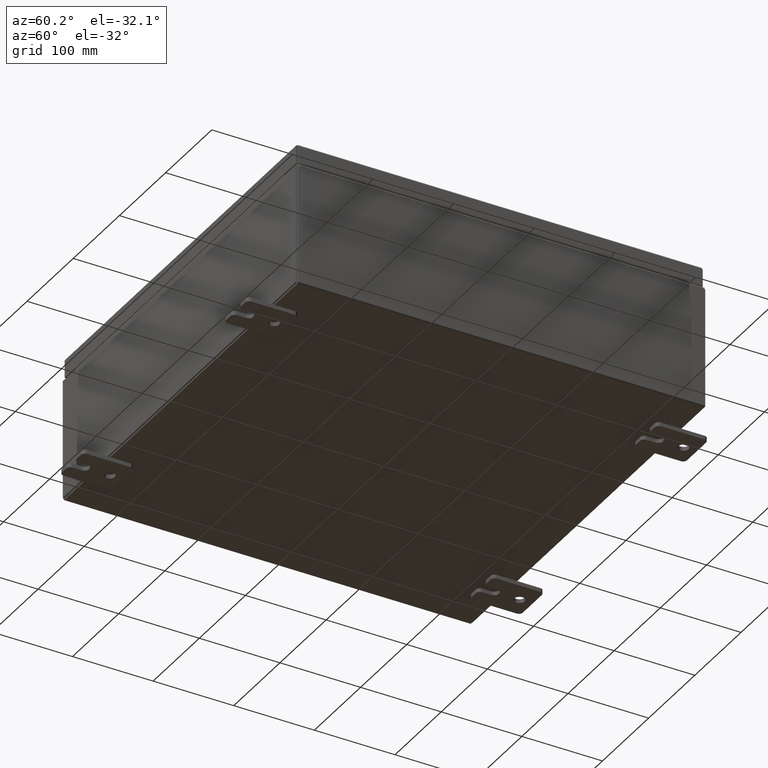
[diagram: clean part render]
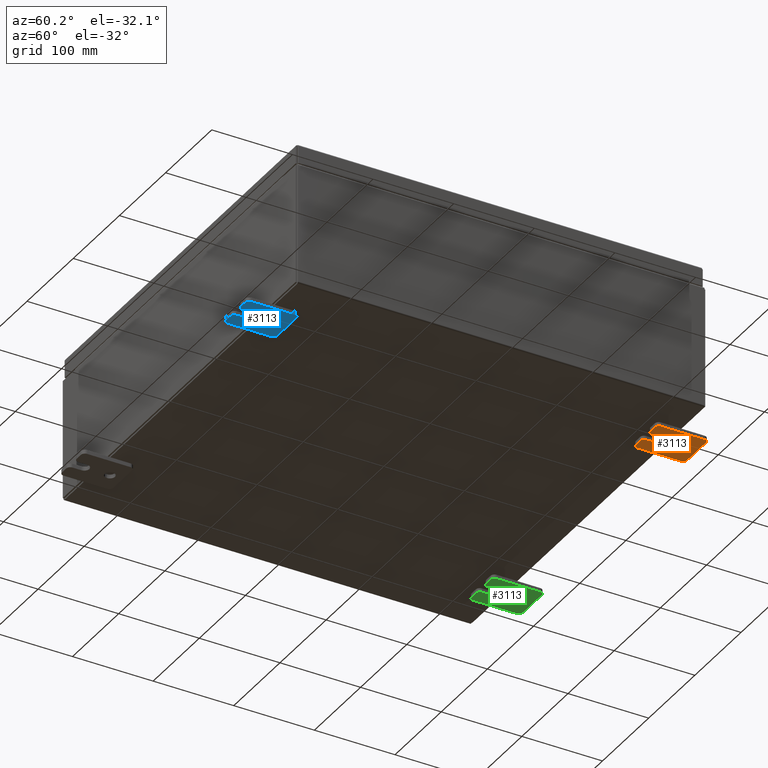
[diagram: same view with three faces highlighted in distinct colors, each labeled with its STEP entity id]
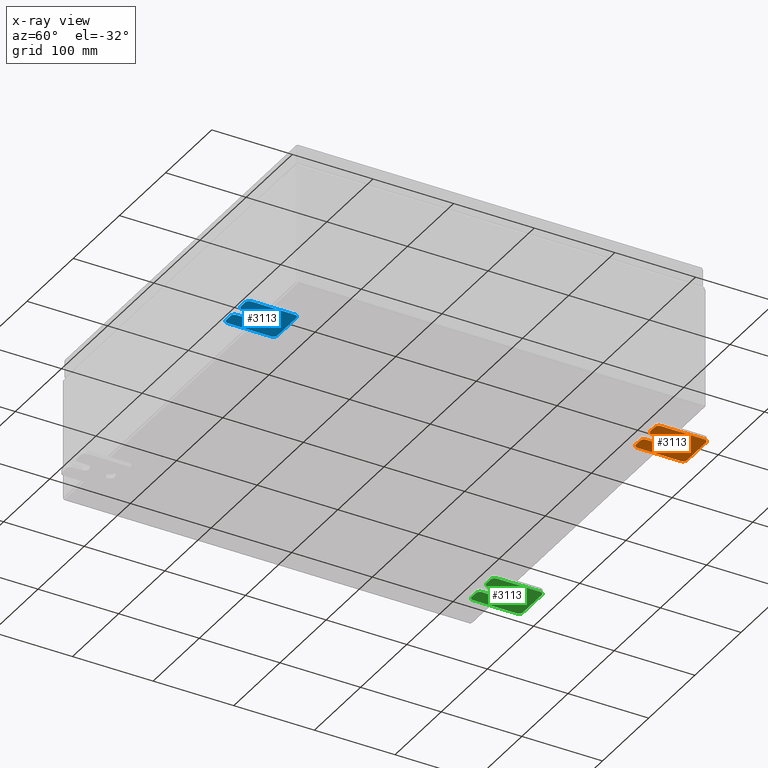
[diagram: x-ray of the same camera — body ghosted, the three highlighted faces saturated]
A machine part, auxiliary view with three faces highlighted in distinct colors.
The next image is the same camera in x-ray (body ghosted, the three faces saturated) — at least one of them is partly hidden behind the body in this view.
Their STEP definitions:

[orange] entity #3113 — the highlighted planar face has unit normal (0, 0, 1).
#2390 = DIRECTION ( 'NONE',  ( 0.0000000000000000000, 0.0000000000000000000, -1.000000000000000000 ) ) ;
#2584 = LINE ( 'NONE', #7833, #40400 ) ;
#3113 = ADVANCED_FACE ( 'NONE', ( #54488, #16872 ), #18984, .F. ) ;
#4136 = DIRECTION ( 'NONE',  ( 0.0000000000000000000, 0.0000000000000000000, -1.000000000000000000 ) ) ;
#5176 = DIRECTION ( 'NONE',  ( 1.000000000000000000, 0.0000000000000000000, -0.0000000000000000000 ) ) ;
#5456 = CARTESIAN_POINT ( 'NONE',  ( -0.1879999999999997800, -1.250000000000003100, 0.4400000000000020000 ) ) ;
#5476 = CIRCLE ( 'NONE', #21311, 0.1900000000000011100 ) ;
#6790 = ORIENTED_EDGE ( 'NONE', *, *, #52083, .T. ) ;
#6950 = ORIENTED_EDGE ( 'NONE', *, *, #34559, .T. ) ;
#7020 = ORIENTED_EDGE ( 'NONE', *, *, #37758, .T. ) ;
#7153 = CARTESIAN_POINT ( 'NONE',  ( -0.1880000000000010000, 0.6249999999999992200, -0.2499999999999999200 ) ) ;
#7833 = CARTESIAN_POINT ( 'NONE',  ( -0.1879999999999997800, 1.249999999999997600, 0.9999999999999951200 ) ) ;
#8108 = EDGE_CURVE ( 'NONE', #56600, #39119, #39269, .T. ) ;
#8219 = DIRECTION ( 'NONE',  ( -0.0000000000000000000, 0.0000000000000000000, -1.000000000000000000 ) ) ;
#9561 = VECTOR ( 'NONE', #55623, 39.37007874015748100 ) ;
#9903 = VERTEX_POINT ( 'NONE', #46787 ) ;
#10348 = CARTESIAN_POINT ( 'NONE',  ( -0.1880000000000004700, -1.060000000000002100, 0.2500000000000005000 ) ) ;
#10440 = CIRCLE ( 'NONE', #35079, 0.2499999999999999200 ) ;
#11210 = VERTEX_POINT ( 'NONE', #56423 ) ;
#11337 = CARTESIAN_POINT ( 'NONE',  ( -0.1880000000000001900, -0.6249999999999992200, -0.2499999999999993900 ) ) ;
#11594 = CARTESIAN_POINT ( 'NONE',  ( -0.1880000000000010000, 0.6249999999999992200, 0.2499999999999999200 ) ) ;
#11737 = CARTESIAN_POINT ( 'NONE',  ( -0.1879999999999997800, -1.060000000000004500, -1.000000000000006400 ) ) ;
#12891 = EDGE_CURVE ( 'NONE', #48755, #31435, #46057, .T. ) ;
#13048 = AXIS2_PLACEMENT_3D ( 'NONE', #14606, #49064, #19542 ) ;
#13339 = CARTESIAN_POINT ( 'NONE',  ( -0.1880000000000001900, -0.6249999999999992200, 6.829619984160658000E-017 ) ) ;
#14258 = CARTESIAN_POINT ( 'NONE',  ( -0.1879999999999997800, 0.0000000000000000000, 0.0000000000000000000 ) ) ;
#14451 = EDGE_CURVE ( 'NONE', #11210, #52012, #45182, .T. ) ;
#14606 = CARTESIAN_POINT ( 'NONE',  ( -0.1879999999999997800, -1.060000000000003400, -0.4400000000000005000 ) ) ;
#14636 = EDGE_CURVE ( 'NONE', #53904, #9903, #43588, .T. ) ;
#15249 = EDGE_CURVE ( 'NONE', #48755, #61530, #39731, .T. ) ;
#15277 = AXIS2_PLACEMENT_3D ( 'NONE', #22215, #56533, #27143 ) ;
#15380 = CARTESIAN_POINT ( 'NONE',  ( -0.1880000000000004700, -1.060000000000003400, -0.2499999999999994400 ) ) ;
#15388 = EDGE_CURVE ( 'NONE', #9903, #53017, #10440, .T. ) ;
#16072 = ORIENTED_EDGE ( 'NONE', *, *, #15249, .T. ) ;
#16275 = DIRECTION ( 'NONE',  ( -6.556435184794182400E-016, -1.000000000000000000, -1.639108796198545600E-016 ) ) ;
#16662 = EDGE_CURVE ( 'NONE', #53017, #23830, #37810, .T. ) ;
#16872 = FACE_OUTER_BOUND ( 'NONE', #17548, .T. ) ;
#17548 = EDGE_LOOP ( 'NONE', ( #62112, #16072, #34770, #6790, #32233, #26078, #52236, #21579, #21638, #7020, #28343, #59766, #61871, #6950 ) ) ;
#17883 = CARTESIAN_POINT ( 'NONE',  ( -0.1879999999999997800, -1.250000000000005600, -1.000000000000006200 ) ) ;
#18285 = DIRECTION ( 'NONE',  ( -6.829619984160660000E-016, -1.000000000000000000, 0.0000000000000000000 ) ) ;
#18940 = VECTOR ( 'NONE', #22091, 39.37007874015748100 ) ;
#18984 = PLANE ( 'NONE',  #62283 ) ;
#19143 = DIRECTION ( 'NONE',  ( 0.0000000000000000000, -1.639108796198553600E-015, -1.000000000000000000 ) ) ;
#19236 = CARTESIAN_POINT ( 'NONE',  ( -0.1880000000000010000, 0.6249999999999992200, -7.703811342100550500E-020 ) ) ;
#19542 = DIRECTION ( 'NONE',  ( 0.0000000000000000000, 0.0000000000000000000, -1.000000000000000000 ) ) ;
#20315 = CARTESIAN_POINT ( 'NONE',  ( -0.1879999999999997800, 1.059999999999996500, 0.9999999999999953400 ) ) ;
#21311 = AXIS2_PLACEMENT_3D ( 'NONE', #61109, #31906, #2390 ) ;
#21353 = VECTOR ( 'NONE', #19143, 39.37007874015748100 ) ;
#21579 = ORIENTED_EDGE ( 'NONE', *, *, #8108, .T. ) ;
#21638 = ORIENTED_EDGE ( 'NONE', *, *, #54106, .F. ) ;
#21676 = AXIS2_PLACEMENT_3D ( 'NONE', #62796, #33634, #4136 ) ;
#21774 = VERTEX_POINT ( 'NONE', #42603 ) ;
#22091 = DIRECTION ( 'NONE',  ( 0.0000000000000000000, 1.639108796198553600E-015, 1.000000000000000000 ) ) ;
#22215 = CARTESIAN_POINT ( 'NONE',  ( -0.1879999999999997800, -1.060000000000001600, 0.8099999999999978300 ) ) ;
#22800 = CARTESIAN_POINT ( 'NONE',  ( -0.1879999999999997800, 1.059999999999993400, -1.000000000000010000 ) ) ;
#23210 = DIRECTION ( 'NONE',  ( 0.0000000000000000000, 0.0000000000000000000, -1.000000000000000000 ) ) ;
#23428 = VECTOR ( 'NONE', #27733, 39.37007874015748100 ) ;
#23830 = VERTEX_POINT ( 'NONE', #15380 ) ;
#23892 = DIRECTION ( 'NONE',  ( -1.000000000000000000, -0.0000000000000000000, 0.0000000000000000000 ) ) ;
#24098 = CARTESIAN_POINT ( 'NONE',  ( -0.1879999999999997800, -1.060000000000004100, -0.8100000000000050500 ) ) ;
#24100 = DIRECTION ( 'NONE',  ( 0.0000000000000000000, 0.0000000000000000000, -1.000000000000000000 ) ) ;
#24294 = EDGE_CURVE ( 'NONE', #56600, #26700, #62458, .T. ) ;
#24585 = VECTOR ( 'NONE', #16275, 39.37007874015748100 ) ;
#24623 = CARTESIAN_POINT ( 'NONE',  ( -0.1880000000000010000, 0.6249999999999992200, -7.703811342100550500E-020 ) ) ;
#24915 = CIRCLE ( 'NONE', #21676, 0.1900000000000011100 ) ;
#25696 = EDGE_CURVE ( 'NONE', #57980, #61530, #2584, .T. ) ;
#25808 = VECTOR ( 'NONE', #62233, 39.37007874015748100 ) ;
#26078 = ORIENTED_EDGE ( 'NONE', *, *, #58297, .T. ) ;
#26087 = EDGE_CURVE ( 'NONE', #38117, #31732, #32649, .T. ) ;
#26090 = CARTESIAN_POINT ( 'NONE',  ( -0.1879999999999997800, -1.060000000000001200, 0.9999999999999988900 ) ) ;
#26221 = CARTESIAN_POINT ( 'NONE',  ( -0.1879999999999997800, -1.250000000000002200, 0.9999999999999992200 ) ) ;
#26700 = VERTEX_POINT ( 'NONE', #22800 ) ;
#27143 = DIRECTION ( 'NONE',  ( 0.0000000000000000000, 7.189073667537492800E-016, -1.000000000000000000 ) ) ;
#27154 = CARTESIAN_POINT ( 'NONE',  ( -0.1879999999999997800, -1.060000000000002100, 0.4400000000000016700 ) ) ;
#27733 = DIRECTION ( 'NONE',  ( 0.0000000000000000000, 1.000000000000000000, -1.639108796198558100E-015 ) ) ;
#28343 = ORIENTED_EDGE ( 'NONE', *, *, #16662, .F. ) ;
#29621 = DIRECTION ( 'NONE',  ( 0.0000000000000000000, 0.0000000000000000000, -1.000000000000000000 ) ) ;
#31435 = VERTEX_POINT ( 'NONE', #5456 ) ;
#31732 = VERTEX_POINT ( 'NONE', #7153 ) ;
#31906 = DIRECTION ( 'NONE',  ( -1.000000000000000000, -0.0000000000000000000, 0.0000000000000000000 ) ) ;
#32157 = DIRECTION ( 'NONE',  ( 0.0000000000000000000, 0.0000000000000000000, -1.000000000000000000 ) ) ;
#32233 = ORIENTED_EDGE ( 'NONE', *, *, #14451, .F. ) ;
#32649 = CIRCLE ( 'NONE', #44528, 0.2499999999999999200 ) ;
#33634 = DIRECTION ( 'NONE',  ( -1.000000000000000000, -0.0000000000000000000, 0.0000000000000000000 ) ) ;
#34559 = EDGE_CURVE ( 'NONE', #53904, #31435, #58160, .T. ) ;
#34770 = ORIENTED_EDGE ( 'NONE', *, *, #25696, .F. ) ;
#35079 = AXIS2_PLACEMENT_3D ( 'NONE', #13339, #47804, #18285 ) ;
#37758 = EDGE_CURVE ( 'NONE', #21774, #23830, #63376, .T. ) ;
#37794 = CARTESIAN_POINT ( 'NONE',  ( -0.1879999999999997800, -1.250000000000002400, 0.8099999999999980500 ) ) ;
#37810 = LINE ( 'NONE', #11337, #24585 ) ;
#37863 = CARTESIAN_POINT ( 'NONE',  ( -0.1880000000000005800, -1.250000000000003800, 0.2500000000000005000 ) ) ;
#38117 = VERTEX_POINT ( 'NONE', #11594 ) ;
#39119 = VERTEX_POINT ( 'NONE', #48604 ) ;
#39200 = EDGE_LOOP ( 'NONE', ( #50901, #56896 ) ) ;
#39269 = CIRCLE ( 'NONE', #61274, 0.1900000000000011100 ) ;
#39731 = CIRCLE ( 'NONE', #15277, 0.1900000000000011100 ) ;
#40400 = VECTOR ( 'NONE', #42086, 39.37007874015748100 ) ;
#41082 = AXIS2_PLACEMENT_3D ( 'NONE', #24623, #58886, #29621 ) ;
#42086 = DIRECTION ( 'NONE',  ( 0.0000000000000000000, -1.000000000000000000, 1.639108796198558100E-015 ) ) ;
#42603 = CARTESIAN_POINT ( 'NONE',  ( -0.1879999999999997800, -1.250000000000004700, -0.4400000000000002200 ) ) ;
#42725 = CARTESIAN_POINT ( 'NONE',  ( -0.1879999999999997800, 1.249999999999997300, 0.8099999999999935000 ) ) ;
#43588 = LINE ( 'NONE', #37863, #25808 ) ;
#44528 = AXIS2_PLACEMENT_3D ( 'NONE', #19236, #53600, #24100 ) ;
#45182 = LINE ( 'NONE', #56404, #18940 ) ;
#46057 = LINE ( 'NONE', #53505, #21353 ) ;
#46542 = CIRCLE ( 'NONE', #41082, 0.2499999999999999200 ) ;
#46787 = CARTESIAN_POINT ( 'NONE',  ( -0.1880000000000001900, -0.6249999999999992200, 0.2500000000000005000 ) ) ;
#47349 = LINE ( 'NONE', #26221, #9561 ) ;
#47367 = CARTESIAN_POINT ( 'NONE',  ( -0.1880000000000001900, -0.6249999999999992200, -0.2499999999999998600 ) ) ;
#47804 = DIRECTION ( 'NONE',  ( -1.000000000000000000, 6.523827964459549700E-016, 5.163192708025532000E-017 ) ) ;
#48604 = CARTESIAN_POINT ( 'NONE',  ( -0.1879999999999997800, -1.250000000000005300, -0.8100000000000047200 ) ) ;
#48755 = VERTEX_POINT ( 'NONE', #37794 ) ;
#49064 = DIRECTION ( 'NONE',  ( -1.000000000000000000, -0.0000000000000000000, 0.0000000000000000000 ) ) ;
#50901 = ORIENTED_EDGE ( 'NONE', *, *, #54686, .T. ) ;
#52012 = VERTEX_POINT ( 'NONE', #42725 ) ;
#52083 = EDGE_CURVE ( 'NONE', #57980, #52012, #24915, .T. ) ;
#52236 = ORIENTED_EDGE ( 'NONE', *, *, #24294, .F. ) ;
#52512 = AXIS2_PLACEMENT_3D ( 'NONE', #27154, #61351, #32157 ) ;
#53017 = VERTEX_POINT ( 'NONE', #47367 ) ;
#53505 = CARTESIAN_POINT ( 'NONE',  ( -0.1879999999999997800, -1.250000000000002200, 0.9999999999999992200 ) ) ;
#53600 = DIRECTION ( 'NONE',  ( 1.000000000000000000, -0.0000000000000000000, -5.163192708025532000E-017 ) ) ;
#53904 = VERTEX_POINT ( 'NONE', #10348 ) ;
#54106 = EDGE_CURVE ( 'NONE', #21774, #39119, #47349, .T. ) ;
#54488 = FACE_BOUND ( 'NONE', #39200, .T. ) ;
#54686 = EDGE_CURVE ( 'NONE', #31732, #38117, #46542, .T. ) ;
#55623 = DIRECTION ( 'NONE',  ( 0.0000000000000000000, -1.639108796198553600E-015, -1.000000000000000000 ) ) ;
#56404 = CARTESIAN_POINT ( 'NONE',  ( -0.1879999999999997800, 1.249999999999994200, -1.000000000000010400 ) ) ;
#56423 = CARTESIAN_POINT ( 'NONE',  ( -0.1879999999999997800, 1.249999999999994700, -0.8100000000000092700 ) ) ;
#56533 = DIRECTION ( 'NONE',  ( -1.000000000000000000, -0.0000000000000000000, 0.0000000000000000000 ) ) ;
#56600 = VERTEX_POINT ( 'NONE', #11737 ) ;
#56896 = ORIENTED_EDGE ( 'NONE', *, *, #26087, .T. ) ;
#57980 = VERTEX_POINT ( 'NONE', #20315 ) ;
#58160 = CIRCLE ( 'NONE', #52512, 0.1900000000000011400 ) ;
#58297 = EDGE_CURVE ( 'NONE', #11210, #26700, #5476, .T. ) ;
#58886 = DIRECTION ( 'NONE',  ( 1.000000000000000000, -0.0000000000000000000, -5.163192708025532000E-017 ) ) ;
#59766 = ORIENTED_EDGE ( 'NONE', *, *, #15388, .F. ) ;
#61109 = CARTESIAN_POINT ( 'NONE',  ( -0.1879999999999997800, 1.059999999999993600, -0.8100000000000089400 ) ) ;
#61274 = AXIS2_PLACEMENT_3D ( 'NONE', #24098, #23892, #23210 ) ;
#61351 = DIRECTION ( 'NONE',  ( -1.000000000000000000, -0.0000000000000000000, 0.0000000000000000000 ) ) ;
#61530 = VERTEX_POINT ( 'NONE', #26090 ) ;
#61871 = ORIENTED_EDGE ( 'NONE', *, *, #14636, .F. ) ;
#62112 = ORIENTED_EDGE ( 'NONE', *, *, #12891, .F. ) ;
#62233 = DIRECTION ( 'NONE',  ( 6.556435184794182400E-016, 1.000000000000000000, 0.0000000000000000000 ) ) ;
#62283 = AXIS2_PLACEMENT_3D ( 'NONE', #14258, #5176, #8219 ) ;
#62458 = LINE ( 'NONE', #17883, #23428 ) ;
#62796 = CARTESIAN_POINT ( 'NONE',  ( -0.1879999999999997800, 1.059999999999996300, 0.8099999999999938400 ) ) ;
#63376 = CIRCLE ( 'NONE', #13048, 0.1900000000000011100 ) ;

[blue] entity #3113 — the highlighted planar face has unit normal (0, 0, 1).
#2390 = DIRECTION ( 'NONE',  ( 0.0000000000000000000, 0.0000000000000000000, -1.000000000000000000 ) ) ;
#2584 = LINE ( 'NONE', #7833, #40400 ) ;
#3113 = ADVANCED_FACE ( 'NONE', ( #54488, #16872 ), #18984, .F. ) ;
#4136 = DIRECTION ( 'NONE',  ( 0.0000000000000000000, 0.0000000000000000000, -1.000000000000000000 ) ) ;
#5176 = DIRECTION ( 'NONE',  ( 1.000000000000000000, 0.0000000000000000000, -0.0000000000000000000 ) ) ;
#5456 = CARTESIAN_POINT ( 'NONE',  ( -0.1879999999999997800, -1.250000000000003100, 0.4400000000000020000 ) ) ;
#5476 = CIRCLE ( 'NONE', #21311, 0.1900000000000011100 ) ;
#6790 = ORIENTED_EDGE ( 'NONE', *, *, #52083, .T. ) ;
#6950 = ORIENTED_EDGE ( 'NONE', *, *, #34559, .T. ) ;
#7020 = ORIENTED_EDGE ( 'NONE', *, *, #37758, .T. ) ;
#7153 = CARTESIAN_POINT ( 'NONE',  ( -0.1880000000000010000, 0.6249999999999992200, -0.2499999999999999200 ) ) ;
#7833 = CARTESIAN_POINT ( 'NONE',  ( -0.1879999999999997800, 1.249999999999997600, 0.9999999999999951200 ) ) ;
#8108 = EDGE_CURVE ( 'NONE', #56600, #39119, #39269, .T. ) ;
#8219 = DIRECTION ( 'NONE',  ( -0.0000000000000000000, 0.0000000000000000000, -1.000000000000000000 ) ) ;
#9561 = VECTOR ( 'NONE', #55623, 39.37007874015748100 ) ;
#9903 = VERTEX_POINT ( 'NONE', #46787 ) ;
#10348 = CARTESIAN_POINT ( 'NONE',  ( -0.1880000000000004700, -1.060000000000002100, 0.2500000000000005000 ) ) ;
#10440 = CIRCLE ( 'NONE', #35079, 0.2499999999999999200 ) ;
#11210 = VERTEX_POINT ( 'NONE', #56423 ) ;
#11337 = CARTESIAN_POINT ( 'NONE',  ( -0.1880000000000001900, -0.6249999999999992200, -0.2499999999999993900 ) ) ;
#11594 = CARTESIAN_POINT ( 'NONE',  ( -0.1880000000000010000, 0.6249999999999992200, 0.2499999999999999200 ) ) ;
#11737 = CARTESIAN_POINT ( 'NONE',  ( -0.1879999999999997800, -1.060000000000004500, -1.000000000000006400 ) ) ;
#12891 = EDGE_CURVE ( 'NONE', #48755, #31435, #46057, .T. ) ;
#13048 = AXIS2_PLACEMENT_3D ( 'NONE', #14606, #49064, #19542 ) ;
#13339 = CARTESIAN_POINT ( 'NONE',  ( -0.1880000000000001900, -0.6249999999999992200, 6.829619984160658000E-017 ) ) ;
#14258 = CARTESIAN_POINT ( 'NONE',  ( -0.1879999999999997800, 0.0000000000000000000, 0.0000000000000000000 ) ) ;
#14451 = EDGE_CURVE ( 'NONE', #11210, #52012, #45182, .T. ) ;
#14606 = CARTESIAN_POINT ( 'NONE',  ( -0.1879999999999997800, -1.060000000000003400, -0.4400000000000005000 ) ) ;
#14636 = EDGE_CURVE ( 'NONE', #53904, #9903, #43588, .T. ) ;
#15249 = EDGE_CURVE ( 'NONE', #48755, #61530, #39731, .T. ) ;
#15277 = AXIS2_PLACEMENT_3D ( 'NONE', #22215, #56533, #27143 ) ;
#15380 = CARTESIAN_POINT ( 'NONE',  ( -0.1880000000000004700, -1.060000000000003400, -0.2499999999999994400 ) ) ;
#15388 = EDGE_CURVE ( 'NONE', #9903, #53017, #10440, .T. ) ;
#16072 = ORIENTED_EDGE ( 'NONE', *, *, #15249, .T. ) ;
#16275 = DIRECTION ( 'NONE',  ( -6.556435184794182400E-016, -1.000000000000000000, -1.639108796198545600E-016 ) ) ;
#16662 = EDGE_CURVE ( 'NONE', #53017, #23830, #37810, .T. ) ;
#16872 = FACE_OUTER_BOUND ( 'NONE', #17548, .T. ) ;
#17548 = EDGE_LOOP ( 'NONE', ( #62112, #16072, #34770, #6790, #32233, #26078, #52236, #21579, #21638, #7020, #28343, #59766, #61871, #6950 ) ) ;
#17883 = CARTESIAN_POINT ( 'NONE',  ( -0.1879999999999997800, -1.250000000000005600, -1.000000000000006200 ) ) ;
#18285 = DIRECTION ( 'NONE',  ( -6.829619984160660000E-016, -1.000000000000000000, 0.0000000000000000000 ) ) ;
#18940 = VECTOR ( 'NONE', #22091, 39.37007874015748100 ) ;
#18984 = PLANE ( 'NONE',  #62283 ) ;
#19143 = DIRECTION ( 'NONE',  ( 0.0000000000000000000, -1.639108796198553600E-015, -1.000000000000000000 ) ) ;
#19236 = CARTESIAN_POINT ( 'NONE',  ( -0.1880000000000010000, 0.6249999999999992200, -7.703811342100550500E-020 ) ) ;
#19542 = DIRECTION ( 'NONE',  ( 0.0000000000000000000, 0.0000000000000000000, -1.000000000000000000 ) ) ;
#20315 = CARTESIAN_POINT ( 'NONE',  ( -0.1879999999999997800, 1.059999999999996500, 0.9999999999999953400 ) ) ;
#21311 = AXIS2_PLACEMENT_3D ( 'NONE', #61109, #31906, #2390 ) ;
#21353 = VECTOR ( 'NONE', #19143, 39.37007874015748100 ) ;
#21579 = ORIENTED_EDGE ( 'NONE', *, *, #8108, .T. ) ;
#21638 = ORIENTED_EDGE ( 'NONE', *, *, #54106, .F. ) ;
#21676 = AXIS2_PLACEMENT_3D ( 'NONE', #62796, #33634, #4136 ) ;
#21774 = VERTEX_POINT ( 'NONE', #42603 ) ;
#22091 = DIRECTION ( 'NONE',  ( 0.0000000000000000000, 1.639108796198553600E-015, 1.000000000000000000 ) ) ;
#22215 = CARTESIAN_POINT ( 'NONE',  ( -0.1879999999999997800, -1.060000000000001600, 0.8099999999999978300 ) ) ;
#22800 = CARTESIAN_POINT ( 'NONE',  ( -0.1879999999999997800, 1.059999999999993400, -1.000000000000010000 ) ) ;
#23210 = DIRECTION ( 'NONE',  ( 0.0000000000000000000, 0.0000000000000000000, -1.000000000000000000 ) ) ;
#23428 = VECTOR ( 'NONE', #27733, 39.37007874015748100 ) ;
#23830 = VERTEX_POINT ( 'NONE', #15380 ) ;
#23892 = DIRECTION ( 'NONE',  ( -1.000000000000000000, -0.0000000000000000000, 0.0000000000000000000 ) ) ;
#24098 = CARTESIAN_POINT ( 'NONE',  ( -0.1879999999999997800, -1.060000000000004100, -0.8100000000000050500 ) ) ;
#24100 = DIRECTION ( 'NONE',  ( 0.0000000000000000000, 0.0000000000000000000, -1.000000000000000000 ) ) ;
#24294 = EDGE_CURVE ( 'NONE', #56600, #26700, #62458, .T. ) ;
#24585 = VECTOR ( 'NONE', #16275, 39.37007874015748100 ) ;
#24623 = CARTESIAN_POINT ( 'NONE',  ( -0.1880000000000010000, 0.6249999999999992200, -7.703811342100550500E-020 ) ) ;
#24915 = CIRCLE ( 'NONE', #21676, 0.1900000000000011100 ) ;
#25696 = EDGE_CURVE ( 'NONE', #57980, #61530, #2584, .T. ) ;
#25808 = VECTOR ( 'NONE', #62233, 39.37007874015748100 ) ;
#26078 = ORIENTED_EDGE ( 'NONE', *, *, #58297, .T. ) ;
#26087 = EDGE_CURVE ( 'NONE', #38117, #31732, #32649, .T. ) ;
#26090 = CARTESIAN_POINT ( 'NONE',  ( -0.1879999999999997800, -1.060000000000001200, 0.9999999999999988900 ) ) ;
#26221 = CARTESIAN_POINT ( 'NONE',  ( -0.1879999999999997800, -1.250000000000002200, 0.9999999999999992200 ) ) ;
#26700 = VERTEX_POINT ( 'NONE', #22800 ) ;
#27143 = DIRECTION ( 'NONE',  ( 0.0000000000000000000, 7.189073667537492800E-016, -1.000000000000000000 ) ) ;
#27154 = CARTESIAN_POINT ( 'NONE',  ( -0.1879999999999997800, -1.060000000000002100, 0.4400000000000016700 ) ) ;
#27733 = DIRECTION ( 'NONE',  ( 0.0000000000000000000, 1.000000000000000000, -1.639108796198558100E-015 ) ) ;
#28343 = ORIENTED_EDGE ( 'NONE', *, *, #16662, .F. ) ;
#29621 = DIRECTION ( 'NONE',  ( 0.0000000000000000000, 0.0000000000000000000, -1.000000000000000000 ) ) ;
#31435 = VERTEX_POINT ( 'NONE', #5456 ) ;
#31732 = VERTEX_POINT ( 'NONE', #7153 ) ;
#31906 = DIRECTION ( 'NONE',  ( -1.000000000000000000, -0.0000000000000000000, 0.0000000000000000000 ) ) ;
#32157 = DIRECTION ( 'NONE',  ( 0.0000000000000000000, 0.0000000000000000000, -1.000000000000000000 ) ) ;
#32233 = ORIENTED_EDGE ( 'NONE', *, *, #14451, .F. ) ;
#32649 = CIRCLE ( 'NONE', #44528, 0.2499999999999999200 ) ;
#33634 = DIRECTION ( 'NONE',  ( -1.000000000000000000, -0.0000000000000000000, 0.0000000000000000000 ) ) ;
#34559 = EDGE_CURVE ( 'NONE', #53904, #31435, #58160, .T. ) ;
#34770 = ORIENTED_EDGE ( 'NONE', *, *, #25696, .F. ) ;
#35079 = AXIS2_PLACEMENT_3D ( 'NONE', #13339, #47804, #18285 ) ;
#37758 = EDGE_CURVE ( 'NONE', #21774, #23830, #63376, .T. ) ;
#37794 = CARTESIAN_POINT ( 'NONE',  ( -0.1879999999999997800, -1.250000000000002400, 0.8099999999999980500 ) ) ;
#37810 = LINE ( 'NONE', #11337, #24585 ) ;
#37863 = CARTESIAN_POINT ( 'NONE',  ( -0.1880000000000005800, -1.250000000000003800, 0.2500000000000005000 ) ) ;
#38117 = VERTEX_POINT ( 'NONE', #11594 ) ;
#39119 = VERTEX_POINT ( 'NONE', #48604 ) ;
#39200 = EDGE_LOOP ( 'NONE', ( #50901, #56896 ) ) ;
#39269 = CIRCLE ( 'NONE', #61274, 0.1900000000000011100 ) ;
#39731 = CIRCLE ( 'NONE', #15277, 0.1900000000000011100 ) ;
#40400 = VECTOR ( 'NONE', #42086, 39.37007874015748100 ) ;
#41082 = AXIS2_PLACEMENT_3D ( 'NONE', #24623, #58886, #29621 ) ;
#42086 = DIRECTION ( 'NONE',  ( 0.0000000000000000000, -1.000000000000000000, 1.639108796198558100E-015 ) ) ;
#42603 = CARTESIAN_POINT ( 'NONE',  ( -0.1879999999999997800, -1.250000000000004700, -0.4400000000000002200 ) ) ;
#42725 = CARTESIAN_POINT ( 'NONE',  ( -0.1879999999999997800, 1.249999999999997300, 0.8099999999999935000 ) ) ;
#43588 = LINE ( 'NONE', #37863, #25808 ) ;
#44528 = AXIS2_PLACEMENT_3D ( 'NONE', #19236, #53600, #24100 ) ;
#45182 = LINE ( 'NONE', #56404, #18940 ) ;
#46057 = LINE ( 'NONE', #53505, #21353 ) ;
#46542 = CIRCLE ( 'NONE', #41082, 0.2499999999999999200 ) ;
#46787 = CARTESIAN_POINT ( 'NONE',  ( -0.1880000000000001900, -0.6249999999999992200, 0.2500000000000005000 ) ) ;
#47349 = LINE ( 'NONE', #26221, #9561 ) ;
#47367 = CARTESIAN_POINT ( 'NONE',  ( -0.1880000000000001900, -0.6249999999999992200, -0.2499999999999998600 ) ) ;
#47804 = DIRECTION ( 'NONE',  ( -1.000000000000000000, 6.523827964459549700E-016, 5.163192708025532000E-017 ) ) ;
#48604 = CARTESIAN_POINT ( 'NONE',  ( -0.1879999999999997800, -1.250000000000005300, -0.8100000000000047200 ) ) ;
#48755 = VERTEX_POINT ( 'NONE', #37794 ) ;
#49064 = DIRECTION ( 'NONE',  ( -1.000000000000000000, -0.0000000000000000000, 0.0000000000000000000 ) ) ;
#50901 = ORIENTED_EDGE ( 'NONE', *, *, #54686, .T. ) ;
#52012 = VERTEX_POINT ( 'NONE', #42725 ) ;
#52083 = EDGE_CURVE ( 'NONE', #57980, #52012, #24915, .T. ) ;
#52236 = ORIENTED_EDGE ( 'NONE', *, *, #24294, .F. ) ;
#52512 = AXIS2_PLACEMENT_3D ( 'NONE', #27154, #61351, #32157 ) ;
#53017 = VERTEX_POINT ( 'NONE', #47367 ) ;
#53505 = CARTESIAN_POINT ( 'NONE',  ( -0.1879999999999997800, -1.250000000000002200, 0.9999999999999992200 ) ) ;
#53600 = DIRECTION ( 'NONE',  ( 1.000000000000000000, -0.0000000000000000000, -5.163192708025532000E-017 ) ) ;
#53904 = VERTEX_POINT ( 'NONE', #10348 ) ;
#54106 = EDGE_CURVE ( 'NONE', #21774, #39119, #47349, .T. ) ;
#54488 = FACE_BOUND ( 'NONE', #39200, .T. ) ;
#54686 = EDGE_CURVE ( 'NONE', #31732, #38117, #46542, .T. ) ;
#55623 = DIRECTION ( 'NONE',  ( 0.0000000000000000000, -1.639108796198553600E-015, -1.000000000000000000 ) ) ;
#56404 = CARTESIAN_POINT ( 'NONE',  ( -0.1879999999999997800, 1.249999999999994200, -1.000000000000010400 ) ) ;
#56423 = CARTESIAN_POINT ( 'NONE',  ( -0.1879999999999997800, 1.249999999999994700, -0.8100000000000092700 ) ) ;
#56533 = DIRECTION ( 'NONE',  ( -1.000000000000000000, -0.0000000000000000000, 0.0000000000000000000 ) ) ;
#56600 = VERTEX_POINT ( 'NONE', #11737 ) ;
#56896 = ORIENTED_EDGE ( 'NONE', *, *, #26087, .T. ) ;
#57980 = VERTEX_POINT ( 'NONE', #20315 ) ;
#58160 = CIRCLE ( 'NONE', #52512, 0.1900000000000011400 ) ;
#58297 = EDGE_CURVE ( 'NONE', #11210, #26700, #5476, .T. ) ;
#58886 = DIRECTION ( 'NONE',  ( 1.000000000000000000, -0.0000000000000000000, -5.163192708025532000E-017 ) ) ;
#59766 = ORIENTED_EDGE ( 'NONE', *, *, #15388, .F. ) ;
#61109 = CARTESIAN_POINT ( 'NONE',  ( -0.1879999999999997800, 1.059999999999993600, -0.8100000000000089400 ) ) ;
#61274 = AXIS2_PLACEMENT_3D ( 'NONE', #24098, #23892, #23210 ) ;
#61351 = DIRECTION ( 'NONE',  ( -1.000000000000000000, -0.0000000000000000000, 0.0000000000000000000 ) ) ;
#61530 = VERTEX_POINT ( 'NONE', #26090 ) ;
#61871 = ORIENTED_EDGE ( 'NONE', *, *, #14636, .F. ) ;
#62112 = ORIENTED_EDGE ( 'NONE', *, *, #12891, .F. ) ;
#62233 = DIRECTION ( 'NONE',  ( 6.556435184794182400E-016, 1.000000000000000000, 0.0000000000000000000 ) ) ;
#62283 = AXIS2_PLACEMENT_3D ( 'NONE', #14258, #5176, #8219 ) ;
#62458 = LINE ( 'NONE', #17883, #23428 ) ;
#62796 = CARTESIAN_POINT ( 'NONE',  ( -0.1879999999999997800, 1.059999999999996300, 0.8099999999999938400 ) ) ;
#63376 = CIRCLE ( 'NONE', #13048, 0.1900000000000011100 ) ;

[green] entity #3113 — the highlighted planar face has unit normal (0, 0, 1).
#2390 = DIRECTION ( 'NONE',  ( 0.0000000000000000000, 0.0000000000000000000, -1.000000000000000000 ) ) ;
#2584 = LINE ( 'NONE', #7833, #40400 ) ;
#3113 = ADVANCED_FACE ( 'NONE', ( #54488, #16872 ), #18984, .F. ) ;
#4136 = DIRECTION ( 'NONE',  ( 0.0000000000000000000, 0.0000000000000000000, -1.000000000000000000 ) ) ;
#5176 = DIRECTION ( 'NONE',  ( 1.000000000000000000, 0.0000000000000000000, -0.0000000000000000000 ) ) ;
#5456 = CARTESIAN_POINT ( 'NONE',  ( -0.1879999999999997800, -1.250000000000003100, 0.4400000000000020000 ) ) ;
#5476 = CIRCLE ( 'NONE', #21311, 0.1900000000000011100 ) ;
#6790 = ORIENTED_EDGE ( 'NONE', *, *, #52083, .T. ) ;
#6950 = ORIENTED_EDGE ( 'NONE', *, *, #34559, .T. ) ;
#7020 = ORIENTED_EDGE ( 'NONE', *, *, #37758, .T. ) ;
#7153 = CARTESIAN_POINT ( 'NONE',  ( -0.1880000000000010000, 0.6249999999999992200, -0.2499999999999999200 ) ) ;
#7833 = CARTESIAN_POINT ( 'NONE',  ( -0.1879999999999997800, 1.249999999999997600, 0.9999999999999951200 ) ) ;
#8108 = EDGE_CURVE ( 'NONE', #56600, #39119, #39269, .T. ) ;
#8219 = DIRECTION ( 'NONE',  ( -0.0000000000000000000, 0.0000000000000000000, -1.000000000000000000 ) ) ;
#9561 = VECTOR ( 'NONE', #55623, 39.37007874015748100 ) ;
#9903 = VERTEX_POINT ( 'NONE', #46787 ) ;
#10348 = CARTESIAN_POINT ( 'NONE',  ( -0.1880000000000004700, -1.060000000000002100, 0.2500000000000005000 ) ) ;
#10440 = CIRCLE ( 'NONE', #35079, 0.2499999999999999200 ) ;
#11210 = VERTEX_POINT ( 'NONE', #56423 ) ;
#11337 = CARTESIAN_POINT ( 'NONE',  ( -0.1880000000000001900, -0.6249999999999992200, -0.2499999999999993900 ) ) ;
#11594 = CARTESIAN_POINT ( 'NONE',  ( -0.1880000000000010000, 0.6249999999999992200, 0.2499999999999999200 ) ) ;
#11737 = CARTESIAN_POINT ( 'NONE',  ( -0.1879999999999997800, -1.060000000000004500, -1.000000000000006400 ) ) ;
#12891 = EDGE_CURVE ( 'NONE', #48755, #31435, #46057, .T. ) ;
#13048 = AXIS2_PLACEMENT_3D ( 'NONE', #14606, #49064, #19542 ) ;
#13339 = CARTESIAN_POINT ( 'NONE',  ( -0.1880000000000001900, -0.6249999999999992200, 6.829619984160658000E-017 ) ) ;
#14258 = CARTESIAN_POINT ( 'NONE',  ( -0.1879999999999997800, 0.0000000000000000000, 0.0000000000000000000 ) ) ;
#14451 = EDGE_CURVE ( 'NONE', #11210, #52012, #45182, .T. ) ;
#14606 = CARTESIAN_POINT ( 'NONE',  ( -0.1879999999999997800, -1.060000000000003400, -0.4400000000000005000 ) ) ;
#14636 = EDGE_CURVE ( 'NONE', #53904, #9903, #43588, .T. ) ;
#15249 = EDGE_CURVE ( 'NONE', #48755, #61530, #39731, .T. ) ;
#15277 = AXIS2_PLACEMENT_3D ( 'NONE', #22215, #56533, #27143 ) ;
#15380 = CARTESIAN_POINT ( 'NONE',  ( -0.1880000000000004700, -1.060000000000003400, -0.2499999999999994400 ) ) ;
#15388 = EDGE_CURVE ( 'NONE', #9903, #53017, #10440, .T. ) ;
#16072 = ORIENTED_EDGE ( 'NONE', *, *, #15249, .T. ) ;
#16275 = DIRECTION ( 'NONE',  ( -6.556435184794182400E-016, -1.000000000000000000, -1.639108796198545600E-016 ) ) ;
#16662 = EDGE_CURVE ( 'NONE', #53017, #23830, #37810, .T. ) ;
#16872 = FACE_OUTER_BOUND ( 'NONE', #17548, .T. ) ;
#17548 = EDGE_LOOP ( 'NONE', ( #62112, #16072, #34770, #6790, #32233, #26078, #52236, #21579, #21638, #7020, #28343, #59766, #61871, #6950 ) ) ;
#17883 = CARTESIAN_POINT ( 'NONE',  ( -0.1879999999999997800, -1.250000000000005600, -1.000000000000006200 ) ) ;
#18285 = DIRECTION ( 'NONE',  ( -6.829619984160660000E-016, -1.000000000000000000, 0.0000000000000000000 ) ) ;
#18940 = VECTOR ( 'NONE', #22091, 39.37007874015748100 ) ;
#18984 = PLANE ( 'NONE',  #62283 ) ;
#19143 = DIRECTION ( 'NONE',  ( 0.0000000000000000000, -1.639108796198553600E-015, -1.000000000000000000 ) ) ;
#19236 = CARTESIAN_POINT ( 'NONE',  ( -0.1880000000000010000, 0.6249999999999992200, -7.703811342100550500E-020 ) ) ;
#19542 = DIRECTION ( 'NONE',  ( 0.0000000000000000000, 0.0000000000000000000, -1.000000000000000000 ) ) ;
#20315 = CARTESIAN_POINT ( 'NONE',  ( -0.1879999999999997800, 1.059999999999996500, 0.9999999999999953400 ) ) ;
#21311 = AXIS2_PLACEMENT_3D ( 'NONE', #61109, #31906, #2390 ) ;
#21353 = VECTOR ( 'NONE', #19143, 39.37007874015748100 ) ;
#21579 = ORIENTED_EDGE ( 'NONE', *, *, #8108, .T. ) ;
#21638 = ORIENTED_EDGE ( 'NONE', *, *, #54106, .F. ) ;
#21676 = AXIS2_PLACEMENT_3D ( 'NONE', #62796, #33634, #4136 ) ;
#21774 = VERTEX_POINT ( 'NONE', #42603 ) ;
#22091 = DIRECTION ( 'NONE',  ( 0.0000000000000000000, 1.639108796198553600E-015, 1.000000000000000000 ) ) ;
#22215 = CARTESIAN_POINT ( 'NONE',  ( -0.1879999999999997800, -1.060000000000001600, 0.8099999999999978300 ) ) ;
#22800 = CARTESIAN_POINT ( 'NONE',  ( -0.1879999999999997800, 1.059999999999993400, -1.000000000000010000 ) ) ;
#23210 = DIRECTION ( 'NONE',  ( 0.0000000000000000000, 0.0000000000000000000, -1.000000000000000000 ) ) ;
#23428 = VECTOR ( 'NONE', #27733, 39.37007874015748100 ) ;
#23830 = VERTEX_POINT ( 'NONE', #15380 ) ;
#23892 = DIRECTION ( 'NONE',  ( -1.000000000000000000, -0.0000000000000000000, 0.0000000000000000000 ) ) ;
#24098 = CARTESIAN_POINT ( 'NONE',  ( -0.1879999999999997800, -1.060000000000004100, -0.8100000000000050500 ) ) ;
#24100 = DIRECTION ( 'NONE',  ( 0.0000000000000000000, 0.0000000000000000000, -1.000000000000000000 ) ) ;
#24294 = EDGE_CURVE ( 'NONE', #56600, #26700, #62458, .T. ) ;
#24585 = VECTOR ( 'NONE', #16275, 39.37007874015748100 ) ;
#24623 = CARTESIAN_POINT ( 'NONE',  ( -0.1880000000000010000, 0.6249999999999992200, -7.703811342100550500E-020 ) ) ;
#24915 = CIRCLE ( 'NONE', #21676, 0.1900000000000011100 ) ;
#25696 = EDGE_CURVE ( 'NONE', #57980, #61530, #2584, .T. ) ;
#25808 = VECTOR ( 'NONE', #62233, 39.37007874015748100 ) ;
#26078 = ORIENTED_EDGE ( 'NONE', *, *, #58297, .T. ) ;
#26087 = EDGE_CURVE ( 'NONE', #38117, #31732, #32649, .T. ) ;
#26090 = CARTESIAN_POINT ( 'NONE',  ( -0.1879999999999997800, -1.060000000000001200, 0.9999999999999988900 ) ) ;
#26221 = CARTESIAN_POINT ( 'NONE',  ( -0.1879999999999997800, -1.250000000000002200, 0.9999999999999992200 ) ) ;
#26700 = VERTEX_POINT ( 'NONE', #22800 ) ;
#27143 = DIRECTION ( 'NONE',  ( 0.0000000000000000000, 7.189073667537492800E-016, -1.000000000000000000 ) ) ;
#27154 = CARTESIAN_POINT ( 'NONE',  ( -0.1879999999999997800, -1.060000000000002100, 0.4400000000000016700 ) ) ;
#27733 = DIRECTION ( 'NONE',  ( 0.0000000000000000000, 1.000000000000000000, -1.639108796198558100E-015 ) ) ;
#28343 = ORIENTED_EDGE ( 'NONE', *, *, #16662, .F. ) ;
#29621 = DIRECTION ( 'NONE',  ( 0.0000000000000000000, 0.0000000000000000000, -1.000000000000000000 ) ) ;
#31435 = VERTEX_POINT ( 'NONE', #5456 ) ;
#31732 = VERTEX_POINT ( 'NONE', #7153 ) ;
#31906 = DIRECTION ( 'NONE',  ( -1.000000000000000000, -0.0000000000000000000, 0.0000000000000000000 ) ) ;
#32157 = DIRECTION ( 'NONE',  ( 0.0000000000000000000, 0.0000000000000000000, -1.000000000000000000 ) ) ;
#32233 = ORIENTED_EDGE ( 'NONE', *, *, #14451, .F. ) ;
#32649 = CIRCLE ( 'NONE', #44528, 0.2499999999999999200 ) ;
#33634 = DIRECTION ( 'NONE',  ( -1.000000000000000000, -0.0000000000000000000, 0.0000000000000000000 ) ) ;
#34559 = EDGE_CURVE ( 'NONE', #53904, #31435, #58160, .T. ) ;
#34770 = ORIENTED_EDGE ( 'NONE', *, *, #25696, .F. ) ;
#35079 = AXIS2_PLACEMENT_3D ( 'NONE', #13339, #47804, #18285 ) ;
#37758 = EDGE_CURVE ( 'NONE', #21774, #23830, #63376, .T. ) ;
#37794 = CARTESIAN_POINT ( 'NONE',  ( -0.1879999999999997800, -1.250000000000002400, 0.8099999999999980500 ) ) ;
#37810 = LINE ( 'NONE', #11337, #24585 ) ;
#37863 = CARTESIAN_POINT ( 'NONE',  ( -0.1880000000000005800, -1.250000000000003800, 0.2500000000000005000 ) ) ;
#38117 = VERTEX_POINT ( 'NONE', #11594 ) ;
#39119 = VERTEX_POINT ( 'NONE', #48604 ) ;
#39200 = EDGE_LOOP ( 'NONE', ( #50901, #56896 ) ) ;
#39269 = CIRCLE ( 'NONE', #61274, 0.1900000000000011100 ) ;
#39731 = CIRCLE ( 'NONE', #15277, 0.1900000000000011100 ) ;
#40400 = VECTOR ( 'NONE', #42086, 39.37007874015748100 ) ;
#41082 = AXIS2_PLACEMENT_3D ( 'NONE', #24623, #58886, #29621 ) ;
#42086 = DIRECTION ( 'NONE',  ( 0.0000000000000000000, -1.000000000000000000, 1.639108796198558100E-015 ) ) ;
#42603 = CARTESIAN_POINT ( 'NONE',  ( -0.1879999999999997800, -1.250000000000004700, -0.4400000000000002200 ) ) ;
#42725 = CARTESIAN_POINT ( 'NONE',  ( -0.1879999999999997800, 1.249999999999997300, 0.8099999999999935000 ) ) ;
#43588 = LINE ( 'NONE', #37863, #25808 ) ;
#44528 = AXIS2_PLACEMENT_3D ( 'NONE', #19236, #53600, #24100 ) ;
#45182 = LINE ( 'NONE', #56404, #18940 ) ;
#46057 = LINE ( 'NONE', #53505, #21353 ) ;
#46542 = CIRCLE ( 'NONE', #41082, 0.2499999999999999200 ) ;
#46787 = CARTESIAN_POINT ( 'NONE',  ( -0.1880000000000001900, -0.6249999999999992200, 0.2500000000000005000 ) ) ;
#47349 = LINE ( 'NONE', #26221, #9561 ) ;
#47367 = CARTESIAN_POINT ( 'NONE',  ( -0.1880000000000001900, -0.6249999999999992200, -0.2499999999999998600 ) ) ;
#47804 = DIRECTION ( 'NONE',  ( -1.000000000000000000, 6.523827964459549700E-016, 5.163192708025532000E-017 ) ) ;
#48604 = CARTESIAN_POINT ( 'NONE',  ( -0.1879999999999997800, -1.250000000000005300, -0.8100000000000047200 ) ) ;
#48755 = VERTEX_POINT ( 'NONE', #37794 ) ;
#49064 = DIRECTION ( 'NONE',  ( -1.000000000000000000, -0.0000000000000000000, 0.0000000000000000000 ) ) ;
#50901 = ORIENTED_EDGE ( 'NONE', *, *, #54686, .T. ) ;
#52012 = VERTEX_POINT ( 'NONE', #42725 ) ;
#52083 = EDGE_CURVE ( 'NONE', #57980, #52012, #24915, .T. ) ;
#52236 = ORIENTED_EDGE ( 'NONE', *, *, #24294, .F. ) ;
#52512 = AXIS2_PLACEMENT_3D ( 'NONE', #27154, #61351, #32157 ) ;
#53017 = VERTEX_POINT ( 'NONE', #47367 ) ;
#53505 = CARTESIAN_POINT ( 'NONE',  ( -0.1879999999999997800, -1.250000000000002200, 0.9999999999999992200 ) ) ;
#53600 = DIRECTION ( 'NONE',  ( 1.000000000000000000, -0.0000000000000000000, -5.163192708025532000E-017 ) ) ;
#53904 = VERTEX_POINT ( 'NONE', #10348 ) ;
#54106 = EDGE_CURVE ( 'NONE', #21774, #39119, #47349, .T. ) ;
#54488 = FACE_BOUND ( 'NONE', #39200, .T. ) ;
#54686 = EDGE_CURVE ( 'NONE', #31732, #38117, #46542, .T. ) ;
#55623 = DIRECTION ( 'NONE',  ( 0.0000000000000000000, -1.639108796198553600E-015, -1.000000000000000000 ) ) ;
#56404 = CARTESIAN_POINT ( 'NONE',  ( -0.1879999999999997800, 1.249999999999994200, -1.000000000000010400 ) ) ;
#56423 = CARTESIAN_POINT ( 'NONE',  ( -0.1879999999999997800, 1.249999999999994700, -0.8100000000000092700 ) ) ;
#56533 = DIRECTION ( 'NONE',  ( -1.000000000000000000, -0.0000000000000000000, 0.0000000000000000000 ) ) ;
#56600 = VERTEX_POINT ( 'NONE', #11737 ) ;
#56896 = ORIENTED_EDGE ( 'NONE', *, *, #26087, .T. ) ;
#57980 = VERTEX_POINT ( 'NONE', #20315 ) ;
#58160 = CIRCLE ( 'NONE', #52512, 0.1900000000000011400 ) ;
#58297 = EDGE_CURVE ( 'NONE', #11210, #26700, #5476, .T. ) ;
#58886 = DIRECTION ( 'NONE',  ( 1.000000000000000000, -0.0000000000000000000, -5.163192708025532000E-017 ) ) ;
#59766 = ORIENTED_EDGE ( 'NONE', *, *, #15388, .F. ) ;
#61109 = CARTESIAN_POINT ( 'NONE',  ( -0.1879999999999997800, 1.059999999999993600, -0.8100000000000089400 ) ) ;
#61274 = AXIS2_PLACEMENT_3D ( 'NONE', #24098, #23892, #23210 ) ;
#61351 = DIRECTION ( 'NONE',  ( -1.000000000000000000, -0.0000000000000000000, 0.0000000000000000000 ) ) ;
#61530 = VERTEX_POINT ( 'NONE', #26090 ) ;
#61871 = ORIENTED_EDGE ( 'NONE', *, *, #14636, .F. ) ;
#62112 = ORIENTED_EDGE ( 'NONE', *, *, #12891, .F. ) ;
#62233 = DIRECTION ( 'NONE',  ( 6.556435184794182400E-016, 1.000000000000000000, 0.0000000000000000000 ) ) ;
#62283 = AXIS2_PLACEMENT_3D ( 'NONE', #14258, #5176, #8219 ) ;
#62458 = LINE ( 'NONE', #17883, #23428 ) ;
#62796 = CARTESIAN_POINT ( 'NONE',  ( -0.1879999999999997800, 1.059999999999996300, 0.8099999999999938400 ) ) ;
#63376 = CIRCLE ( 'NONE', #13048, 0.1900000000000011100 ) ;